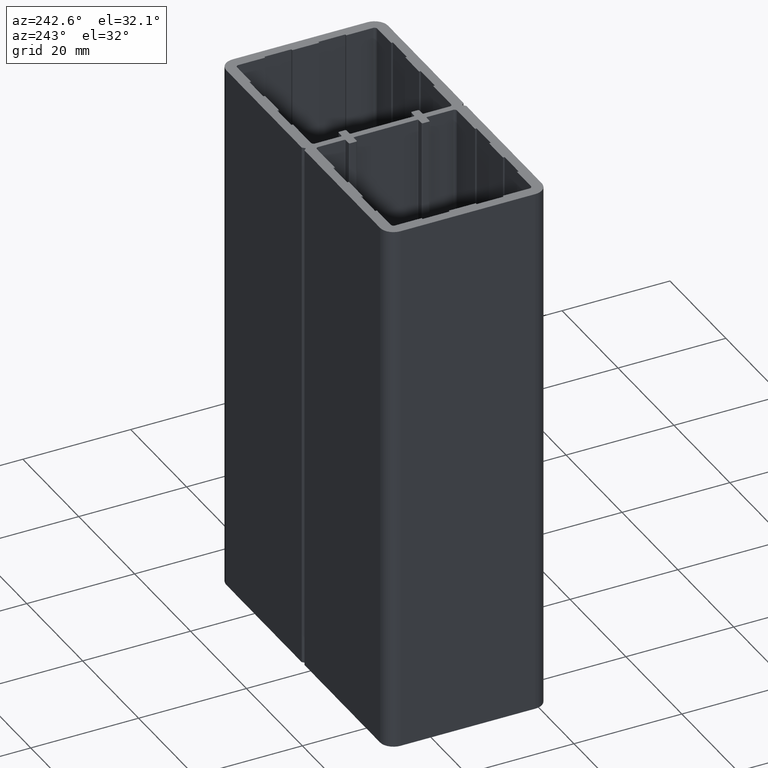
[diagram: clean part render]
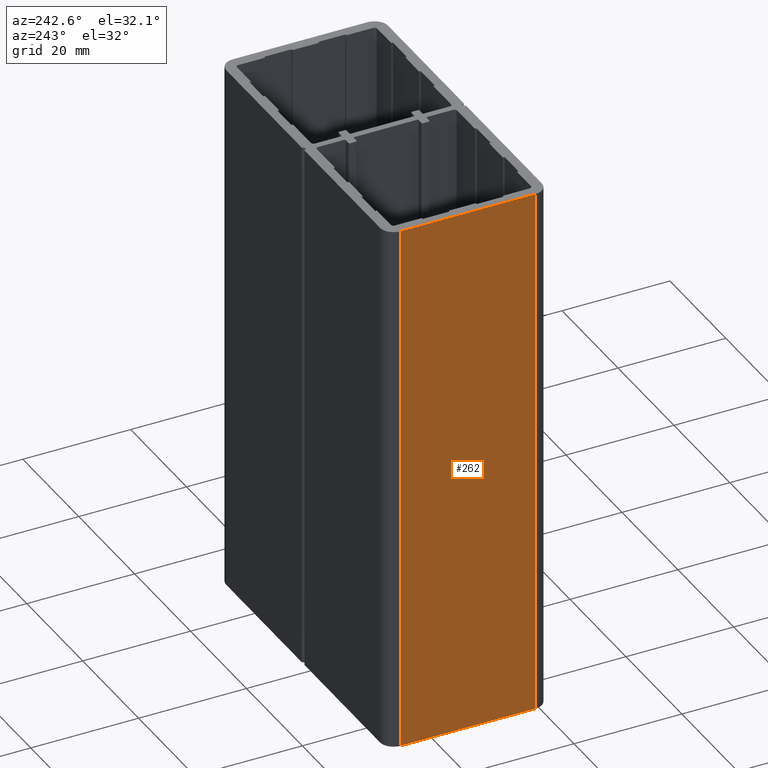
[diagram: same view with one face highlighted and labeled with its STEP entity id]
A machine part, auxiliary view. The second image highlights one B-rep face of the part: STEP entity #262.
In plain terms, the highlighted planar face has unit normal (-1, 0, 0).
Its self-contained STEP definition (entity closure, byte-faithful):
#204=CARTESIAN_POINT('',(-29.999999999984993,26.999999999972601,0.0));
#205=VERTEX_POINT('',#204);
#213=CARTESIAN_POINT('',(-29.999999999984993,26.999999999972601,100.0));
#214=VERTEX_POINT('',#213);
#215=CARTESIAN_POINT('',(-29.999999999984993,26.999999999972601,0.0));
#216=DIRECTION('',(0.0,0.0,1.0));
#217=VECTOR('',#216,100.0);
#218=LINE('',#215,#217);
#219=EDGE_CURVE('',#205,#214,#218,.T.);
#232=CARTESIAN_POINT('',(-29.999999999984993,26.999999999972601,0.0));
#233=DIRECTION('',(-1.0,0.0,0.0));
#234=DIRECTION('',(0.0,-1.0,0.0));
#235=AXIS2_PLACEMENT_3D('',#232,#233,#234);
#236=PLANE('',#235);
#237=CARTESIAN_POINT('',(-29.999999999984880,1.999999999997499,0.0));
#238=VERTEX_POINT('',#237);
#239=CARTESIAN_POINT('',(-29.999999999984993,26.999999999972601,0.0));
#240=DIRECTION('',(0.0,-1.0,0.0));
#241=VECTOR('',#240,24.999999999975103);
#242=LINE('',#239,#241);
#243=EDGE_CURVE('',#205,#238,#242,.T.);
#244=ORIENTED_EDGE('',*,*,#243,.T.);
#245=CARTESIAN_POINT('',(-29.999999999984880,1.999999999997499,100.0));
#246=VERTEX_POINT('',#245);
#247=CARTESIAN_POINT('',(-29.999999999984880,1.999999999997499,0.0));
#248=DIRECTION('',(0.0,0.0,1.0));
#249=VECTOR('',#248,100.0);
#250=LINE('',#247,#249);
#251=EDGE_CURVE('',#238,#246,#250,.T.);
#252=ORIENTED_EDGE('',*,*,#251,.T.);
#253=CARTESIAN_POINT('',(-29.999999999984993,26.999999999972601,100.0));
#254=DIRECTION('',(0.0,-1.0,0.0));
#255=VECTOR('',#254,24.999999999975103);
#256=LINE('',#253,#255);
#257=EDGE_CURVE('',#214,#246,#256,.T.);
#258=ORIENTED_EDGE('',*,*,#257,.F.);
#259=ORIENTED_EDGE('',*,*,#219,.F.);
#260=EDGE_LOOP('',(#244,#252,#258,#259));
#261=FACE_OUTER_BOUND('',#260,.T.);
#262=ADVANCED_FACE('',(#261),#236,.T.);